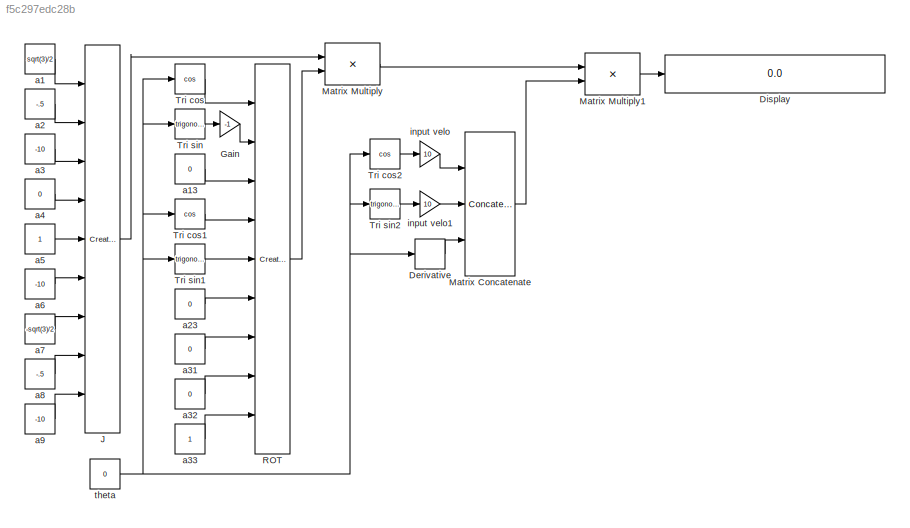
MODEL slx_f5c297edc28b
KIND model
CONFIG AbsTol = auto
CONFIG FixedStep = auto
CONFIG MaxStep = auto
CONFIG MinStep = auto
CONFIG RelTol = 1e-3
CONFIG SampleTimeConstraint = Unconstrained
CONFIG Solver = ode45
CONFIG SolverMode = Auto
CONFIG SolverName = ode45
CONFIG StartTime = 0.0
CONFIG StopTime = 10.0
BLOCK [Derivative] Derivative
BLOCK [Display] Display
  Decimation = 1
  Ports = [1]
BLOCK [Gain] Gain
  Gain = -1
  OutDataTypeStr = Inherit: Inherit via internal rule
  ParamDataTypeStr = Inherit: Inherit via internal rule
  SaturateOnIntegerOverflow = off
BLOCK [Reference] J  REF=aerolibutil/Create 3x3 Matrix
  Ports = [9, 1]
  SourceBlock = aerolibutil/Create 3x3 Matrix
  SourceType = Create 3x3 Matrix
BLOCK [Concatenate] Matrix Concatenate
  Mode = Multidimensional array
  NumInputs = 3
  Ports = [3, 1]
BLOCK [Product] Matrix Multiply
  InputSameDT = off
  Multiplication = Matrix(*)
  OutDataTypeStr = Inherit: Inherit via internal rule
  Ports = [2, 1]
  RndMeth = Floor
  SaturateOnIntegerOverflow = off
BLOCK [Product] Matrix Multiply1
  InputSameDT = off
  Multiplication = Matrix(*)
  OutDataTypeStr = Inherit: Inherit via internal rule
  Ports = [2, 1]
  RndMeth = Floor
  SaturateOnIntegerOverflow = off
BLOCK [Reference] ROT  REF=aerolibutil/Create 3x3 Matrix
  Ports = [9, 1]
  SourceBlock = aerolibutil/Create 3x3 Matrix
  SourceType = Create 3x3 Matrix
BLOCK [Trigonometry] Tri cos
  Operator = cos
  Ports = [1, 1]
BLOCK [Trigonometry] Tri cos1
  Operator = cos
  Ports = [1, 1]
BLOCK [Trigonometry] Tri cos2
  Operator = cos
  Ports = [1, 1]
BLOCK [Trigonometry] Tri sin
  Ports = [1, 1]
BLOCK [Trigonometry] Tri sin1
  Ports = [1, 1]
BLOCK [Trigonometry] Tri sin2
  Ports = [1, 1]
BLOCK [Constant] a1
  Value = sqrt(3)/2
BLOCK [Constant] a13
  Value = 0
BLOCK [Constant] a2
  Value = -.5
BLOCK [Constant] a23
  Value = 0
BLOCK [Constant] a3
  Value = -10
BLOCK [Constant] a31
  Value = 0
BLOCK [Constant] a32
  Value = 0
BLOCK [Constant] a33
BLOCK [Constant] a4
  Value = 0
BLOCK [Constant] a5
BLOCK [Constant] a6
  Value = -10
BLOCK [Constant] a7
  Value = -sqrt(3)/2
BLOCK [Constant] a8
  Value = -.5
BLOCK [Constant] a9
  Value = -10
BLOCK [Gain] input velo
  Gain = 10
  OutDataTypeStr = Inherit: Inherit via internal rule
  ParamDataTypeStr = Inherit: Inherit via internal rule
  SaturateOnIntegerOverflow = off
BLOCK [Gain] input velo1
  Gain = 10
  OutDataTypeStr = Inherit: Inherit via internal rule
  ParamDataTypeStr = Inherit: Inherit via internal rule
  SaturateOnIntegerOverflow = off
BLOCK [Constant] theta
  Value = 0
LINE Derivative:1 -> Matrix Concatenate:3
LINE Gain:1 -> ROT:2
LINE J:1 -> Matrix Multiply:1
LINE Matrix Concatenate:1 -> Matrix Multiply1:2
LINE Matrix Multiply1:1 -> Display:1
LINE Matrix Multiply:1 -> Matrix Multiply1:1
LINE ROT:1 -> Matrix Multiply:2
LINE Tri cos1:1 -> ROT:4
LINE Tri cos2:1 -> input velo:1
LINE Tri cos:1 -> ROT:1
LINE Tri sin1:1 -> ROT:5
LINE Tri sin2:1 -> input velo1:1
LINE Tri sin:1 -> Gain:1
LINE a13:1 -> ROT:3
LINE a1:1 -> J:1
LINE a23:1 -> ROT:6
LINE a2:1 -> J:2
LINE a31:1 -> ROT:7
LINE a32:1 -> ROT:8
LINE a33:1 -> ROT:9
LINE a3:1 -> J:3
LINE a4:1 -> J:4
LINE a5:1 -> J:5
LINE a6:1 -> J:6
LINE a7:1 -> J:7
LINE a8:1 -> J:8
LINE a9:1 -> J:9
LINE input velo1:1 -> Matrix Concatenate:2
LINE input velo:1 -> Matrix Concatenate:1
NET theta:1 -> Derivative:1, Tri cos1:1, Tri cos2:1, Tri cos:1, Tri sin1:1, Tri sin2:1, Tri sin:1
note: NET lines group one-source signal fan-out (src -> all destinations, sorted); 1:1 wires keep LINE
